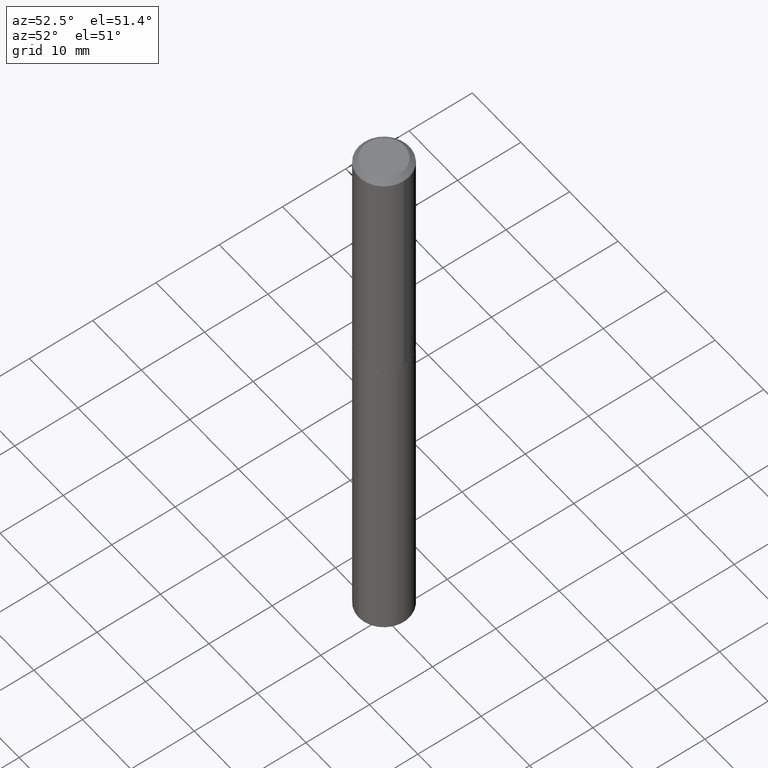
[diagram: clean part render]
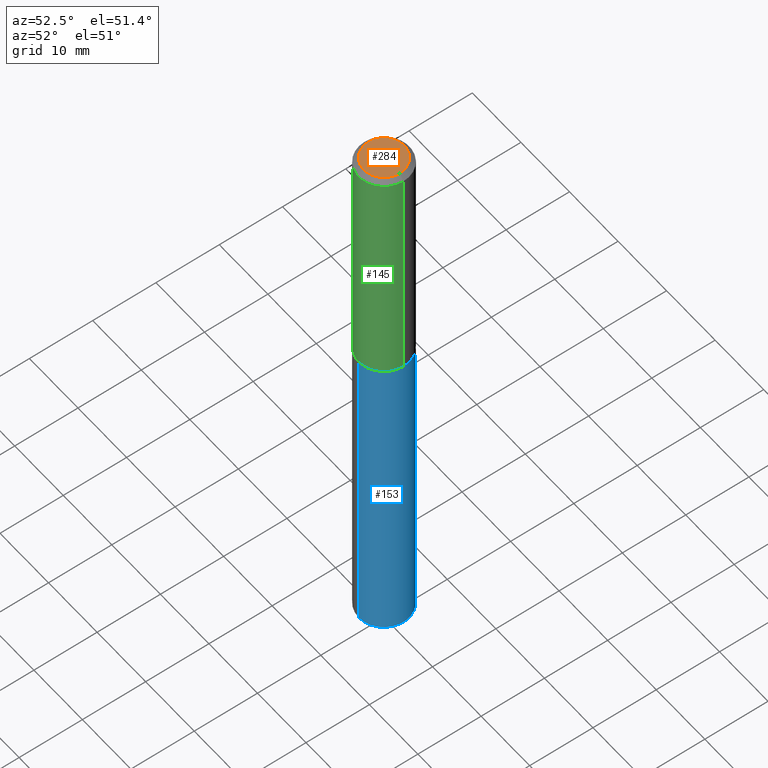
[diagram: same view with three faces highlighted in distinct colors, each labeled with its STEP entity id]
A machine part, auxiliary view with three faces highlighted in distinct colors.
Their STEP definitions:

[orange] entity #284 — the highlighted planar face has unit normal (0, -0, -1).
#3 = PLANE ( 'NONE',  #130 ) ;
#21 = ORIENTED_EDGE ( 'NONE', *, *, #213, .T. ) ;
#56 = CIRCLE ( 'NONE', #272, 0.1262499999999999734 ) ;
#61 = VERTEX_POINT ( 'NONE', #235 ) ;
#128 = CARTESIAN_POINT ( 'NONE',  ( -0.1262499999999999734, 9.361534339773144209E-16, 4.825108388634215244E-18 ) ) ;
#130 = AXIS2_PLACEMENT_3D ( 'NONE', #244, #212, #335 ) ;
#151 = DIRECTION ( 'NONE',  ( 1.000000000000000000, -6.982962677686267499E-15, 4.876009584780190244E-29 ) ) ;
#154 = CIRCLE ( 'NONE', #274, 0.1262499999999999734 ) ;
#164 = EDGE_LOOP ( 'NONE', ( #21, #368 ) ) ;
#186 = CARTESIAN_POINT ( 'NONE',  ( -1.179965205088274384E-46, 1.684677589683407292E-32, 4.825108388640570813E-18 ) ) ;
#212 = DIRECTION ( 'NONE',  ( 2.438088387897960049E-29, -3.491481338843145188E-15, -1.000000000000000000 ) ) ;
#213 = EDGE_CURVE ( 'NONE', #337, #61, #56, .T. ) ;
#235 = CARTESIAN_POINT ( 'NONE',  ( 0.1262499999999999734, -1.027887549353260543E-15, 4.825108388647246856E-18 ) ) ;
#241 = EDGE_CURVE ( 'NONE', #61, #337, #154, .T. ) ;
#244 = CARTESIAN_POINT ( 'NONE',  ( -5.899826025441371921E-47, 8.423387948417036461E-33, 2.412554194320285406E-18 ) ) ;
#264 = CARTESIAN_POINT ( 'NONE',  ( -1.179965205088274384E-46, 1.684677589683407292E-32, 4.825108388640570813E-18 ) ) ;
#267 = DIRECTION ( 'NONE',  ( -2.445468806185136597E-29, 3.491481338843145583E-15, 1.000000000000000000 ) ) ;
#271 = FACE_OUTER_BOUND ( 'NONE', #164, .T. ) ;
#272 = AXIS2_PLACEMENT_3D ( 'NONE', #264, #267, #362 ) ;
#274 = AXIS2_PLACEMENT_3D ( 'NONE', #186, #310, #151 ) ;
#284 = ADVANCED_FACE ( 'NONE', ( #271 ), #3, .F. ) ;
#310 = DIRECTION ( 'NONE',  ( -2.445468806185136597E-29, 3.491481338843145583E-15, 1.000000000000000000 ) ) ;
#335 = DIRECTION ( 'NONE',  ( -1.000000000000000000, 6.982962677686265922E-15, -4.876176775795935793E-29 ) ) ;
#337 = VERTEX_POINT ( 'NONE', #128 ) ;
#362 = DIRECTION ( 'NONE',  ( 1.000000000000000000, -6.982962677686267499E-15, 4.876009584780190244E-29 ) ) ;
#368 = ORIENTED_EDGE ( 'NONE', *, *, #241, .T. ) ;

[blue] entity #153 — the highlighted cylindrical surface (edge-blend (fillet) strip) has radius 4.0005 mm, axis along (-0, 0, 1).
#2 = LINE ( 'NONE', #365, #187 ) ;
#7 = DIRECTION ( 'NONE',  ( -2.444198095015327587E-29, 3.493301069562700469E-15, 1.000000000000000000 ) ) ;
#10 = AXIS2_PLACEMENT_3D ( 'NONE', #375, #7, #342 ) ;
#12 = DIRECTION ( 'NONE',  ( -2.444198095015327587E-29, 3.493301069562700469E-15, 1.000000000000000000 ) ) ;
#35 = EDGE_CURVE ( 'NONE', #315, #217, #2, .T. ) ;
#39 = EDGE_CURVE ( 'NONE', #75, #182, #91, .T. ) ;
#40 = AXIS2_PLACEMENT_3D ( 'NONE', #82, #12, #329 ) ;
#46 = EDGE_LOOP ( 'NONE', ( #196, #113, #100, #322 ) ) ;
#47 = CIRCLE ( 'NONE', #80, 0.1575000000000000011 ) ;
#63 = EDGE_CURVE ( 'NONE', #217, #182, #319, .T. ) ;
#75 = VERTEX_POINT ( 'NONE', #262 ) ;
#80 = AXIS2_PLACEMENT_3D ( 'NONE', #173, #104, #232 ) ;
#82 = CARTESIAN_POINT ( 'NONE',  ( 3.659399521575438742E-29, -5.224652675444883351E-15, -1.496400000000000174 ) ) ;
#91 = LINE ( 'NONE', #211, #149 ) ;
#100 = ORIENTED_EDGE ( 'NONE', *, *, #63, .F. ) ;
#101 = EDGE_CURVE ( 'NONE', #315, #75, #47, .T. ) ;
#104 = DIRECTION ( 'NONE',  ( -2.444198095015327587E-29, 3.493301069562700469E-15, 1.000000000000000000 ) ) ;
#113 = ORIENTED_EDGE ( 'NONE', *, *, #39, .T. ) ;
#115 = CARTESIAN_POINT ( 'NONE',  ( 1.119104808822244181E-15, 0.1574999999999947553, -1.496400000000000841 ) ) ;
#149 = VECTOR ( 'NONE', #334, 39.37007874015748143 ) ;
#153 = ADVANCED_FACE ( 'NONE', ( #203 ), #167, .T. ) ;
#167 = CYLINDRICAL_SURFACE ( 'NONE', #10, 0.1575000000000000011 ) ;
#173 = CARTESIAN_POINT ( 'NONE',  ( 8.603928845919622629E-29, -1.229148151081690217E-14, -3.519365869430962412 ) ) ;
#182 = VERTEX_POINT ( 'NONE', #115 ) ;
#187 = VECTOR ( 'NONE', #242, 39.37007874015748143 ) ;
#196 = ORIENTED_EDGE ( 'NONE', *, *, #101, .T. ) ;
#203 = FACE_OUTER_BOUND ( 'NONE', #46, .T. ) ;
#211 = CARTESIAN_POINT ( 'NONE',  ( 1.119104808822194088E-15, 0.1574999999999947553, -1.496400000000000841 ) ) ;
#217 = VERTEX_POINT ( 'NONE', #300 ) ;
#232 = DIRECTION ( 'NONE',  ( -6.982962677686264344E-15, -1.000000000000000000, 3.469013325287953293E-15 ) ) ;
#242 = DIRECTION ( 'NONE',  ( -2.444198095015327587E-29, 3.493301069562700469E-15, 1.000000000000000000 ) ) ;
#262 = CARTESIAN_POINT ( 'NONE',  ( 1.119104808822243589E-15, 0.1574999999999877331, -3.519365869430963301 ) ) ;
#270 = CARTESIAN_POINT ( 'NONE',  ( -1.099816621735501100E-15, -0.1575000000000123246, -3.519365869430961968 ) ) ;
#300 = CARTESIAN_POINT ( 'NONE',  ( -1.099816621735550009E-15, -0.1575000000000052192, -1.496399999999999730 ) ) ;
#315 = VERTEX_POINT ( 'NONE', #270 ) ;
#319 = CIRCLE ( 'NONE', #40, 0.1575000000000000011 ) ;
#322 = ORIENTED_EDGE ( 'NONE', *, *, #35, .F. ) ;
#329 = DIRECTION ( 'NONE',  ( -6.982962677686264344E-15, -1.000000000000000000, 3.469013325287953293E-15 ) ) ;
#334 = DIRECTION ( 'NONE',  ( -2.444198095015327587E-29, 3.493301069562700469E-15, 1.000000000000000000 ) ) ;
#342 = DIRECTION ( 'NONE',  ( -6.982962677686264344E-15, -1.000000000000000000, 3.469013325287953293E-15 ) ) ;
#365 = CARTESIAN_POINT ( 'NONE',  ( -1.099816621735550009E-15, -0.1575000000000052192, -1.496399999999999730 ) ) ;
#375 = CARTESIAN_POINT ( 'NONE',  ( 3.659399521575438742E-29, -5.224652675444883351E-15, -1.496400000000000174 ) ) ;

[green] entity #145 — the highlighted cylindrical surface (edge-blend (fillet) strip) has radius 4.0005 mm, axis along (-0, 0, 1).
#1 = LINE ( 'NONE', #119, #308 ) ;
#28 = CIRCLE ( 'NONE', #205, 0.1575000000000001676 ) ;
#48 = DIRECTION ( 'NONE',  ( 1.000000000000000000, -6.982962677686267499E-15, 0.000000000000000000 ) ) ;
#50 = EDGE_CURVE ( 'NONE', #314, #344, #28, .T. ) ;
#54 = CYLINDRICAL_SURFACE ( 'NONE', #126, 0.1575000000000000844 ) ;
#57 = CARTESIAN_POINT ( 'NONE',  ( 0.000000000000000000, 0.000000000000000000, 0.000000000000000000 ) ) ;
#70 = CARTESIAN_POINT ( 'NONE',  ( 7.642090019328602662E-31, -1.091087918388490267E-16, -0.03125000000000020817 ) ) ;
#84 = DIRECTION ( 'NONE',  ( 1.000000000000000000, -6.982962677686267499E-15, 4.876176775795936353E-29 ) ) ;
#86 = CARTESIAN_POINT ( 'NONE',  ( 0.1575000000000001676, -6.322723556511050117E-15, -1.495900000000000230 ) ) ;
#105 = ORIENTED_EDGE ( 'NONE', *, *, #290, .F. ) ;
#119 = CARTESIAN_POINT ( 'NONE',  ( 0.1575000000000000844, -1.099816621735587677E-15, 7.679978421878603638E-30 ) ) ;
#126 = AXIS2_PLACEMENT_3D ( 'NONE', #57, #387, #84 ) ;
#145 = ADVANCED_FACE ( 'NONE', ( #378 ), #54, .T. ) ;
#152 = CARTESIAN_POINT ( 'NONE',  ( 0.1575000000000000011, -1.208925413574435989E-15, -0.03125000000000020817 ) ) ;
#157 = DIRECTION ( 'NONE',  ( -2.445468806185136877E-29, 3.491481338843145188E-15, 1.000000000000000000 ) ) ;
#181 = DIRECTION ( 'NONE',  ( -2.445468806185136597E-29, 3.491481338843145583E-15, 1.000000000000000000 ) ) ;
#189 = CARTESIAN_POINT ( 'NONE',  ( 3.658176787172346501E-29, -5.222906934775461847E-15, -1.495900000000000230 ) ) ;
#192 = ORIENTED_EDGE ( 'NONE', *, *, #50, .T. ) ;
#199 = CARTESIAN_POINT ( 'NONE',  ( -0.1575000000000001676, -4.103802125953303455E-15, -1.495900000000000230 ) ) ;
#205 = AXIS2_PLACEMENT_3D ( 'NONE', #189, #225, #48 ) ;
#215 = CARTESIAN_POINT ( 'NONE',  ( -0.1575000000000000844, 1.119104808822158392E-15, -7.747322767151481189E-30 ) ) ;
#223 = EDGE_CURVE ( 'NONE', #314, #236, #234, .T. ) ;
#225 = DIRECTION ( 'NONE',  ( -2.445468806185136597E-29, 3.491481338843145583E-15, 1.000000000000000000 ) ) ;
#226 = EDGE_LOOP ( 'NONE', ( #331, #192, #302, #105 ) ) ;
#234 = LINE ( 'NONE', #215, #364 ) ;
#236 = VERTEX_POINT ( 'NONE', #339 ) ;
#249 = EDGE_CURVE ( 'NONE', #344, #280, #1, .T. ) ;
#280 = VERTEX_POINT ( 'NONE', #152 ) ;
#290 = EDGE_CURVE ( 'NONE', #236, #280, #338, .T. ) ;
#302 = ORIENTED_EDGE ( 'NONE', *, *, #249, .T. ) ;
#305 = DIRECTION ( 'NONE',  ( -2.445468806185136877E-29, 3.491481338843145188E-15, 1.000000000000000000 ) ) ;
#307 = DIRECTION ( 'NONE',  ( 1.000000000000000000, -6.982962677686265922E-15, 0.000000000000000000 ) ) ;
#308 = VECTOR ( 'NONE', #305, 39.37007874015748143 ) ;
#314 = VERTEX_POINT ( 'NONE', #199 ) ;
#331 = ORIENTED_EDGE ( 'NONE', *, *, #223, .F. ) ;
#338 = CIRCLE ( 'NONE', #373, 0.1575000000000000011 ) ;
#339 = CARTESIAN_POINT ( 'NONE',  ( -0.1575000000000000011, -1.546903054484996885E-15, -0.03125000000000020817 ) ) ;
#344 = VERTEX_POINT ( 'NONE', #86 ) ;
#364 = VECTOR ( 'NONE', #157, 39.37007874015748143 ) ;
#373 = AXIS2_PLACEMENT_3D ( 'NONE', #70, #181, #307 ) ;
#378 = FACE_OUTER_BOUND ( 'NONE', #226, .T. ) ;
#387 = DIRECTION ( 'NONE',  ( -2.445468806185136597E-29, 3.491481338843145583E-15, 1.000000000000000000 ) ) ;